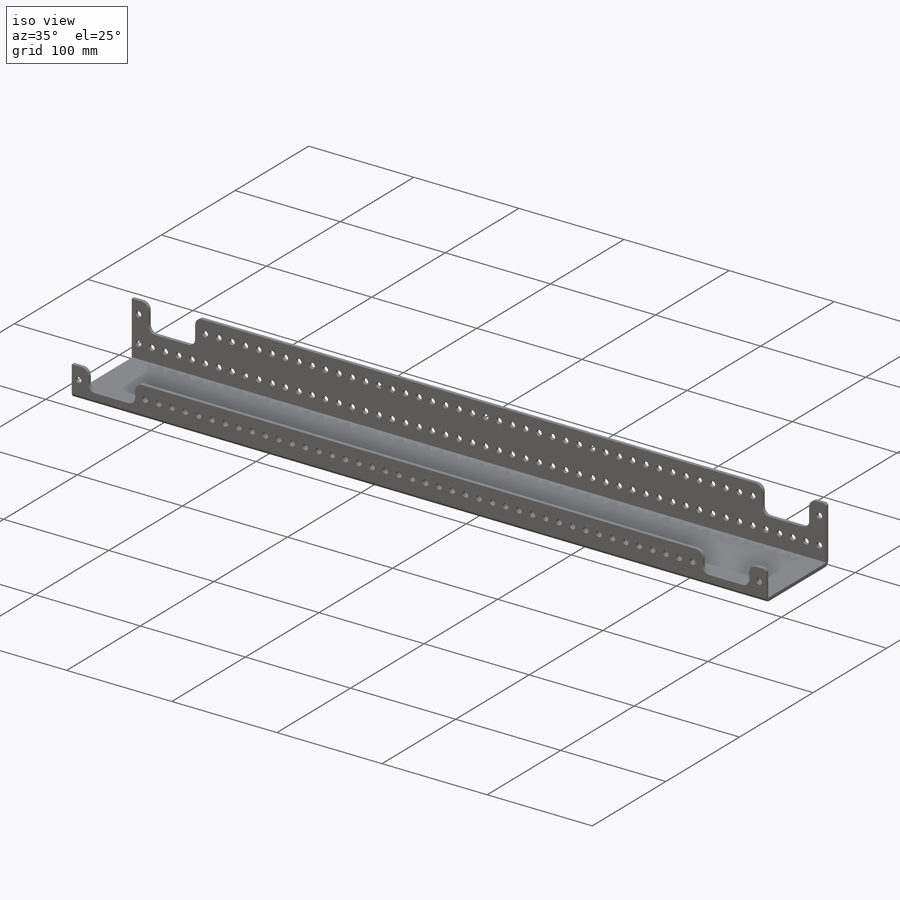
[diagram: iso view]
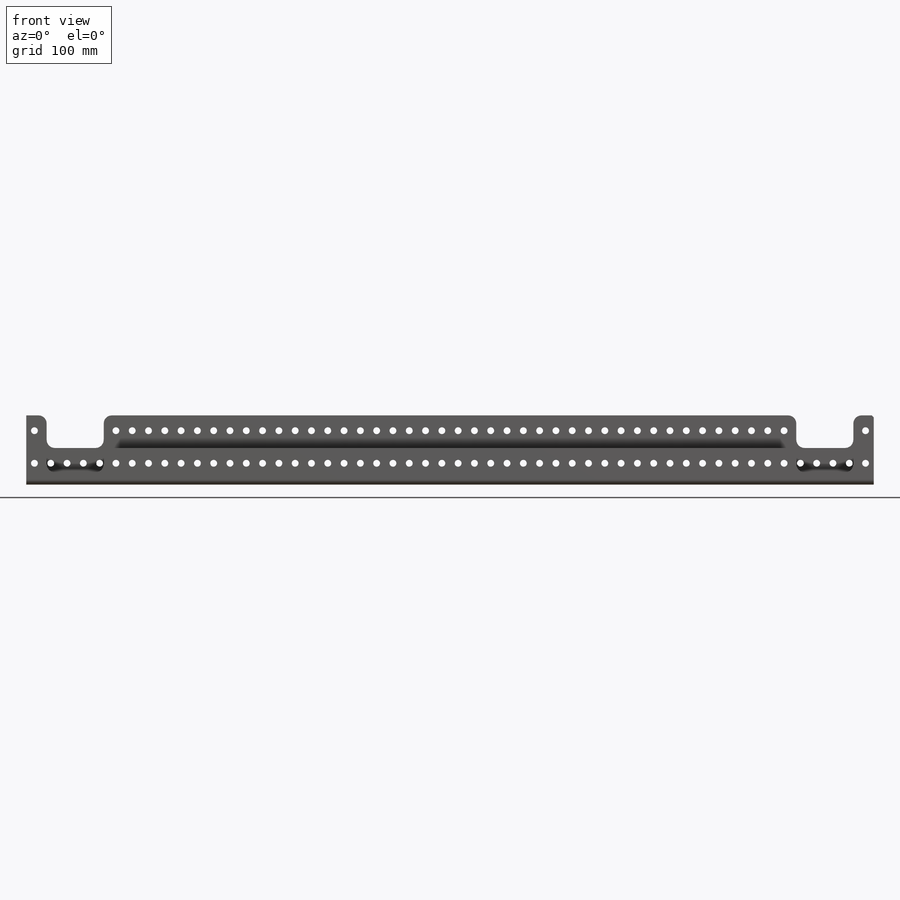
[diagram: front view]
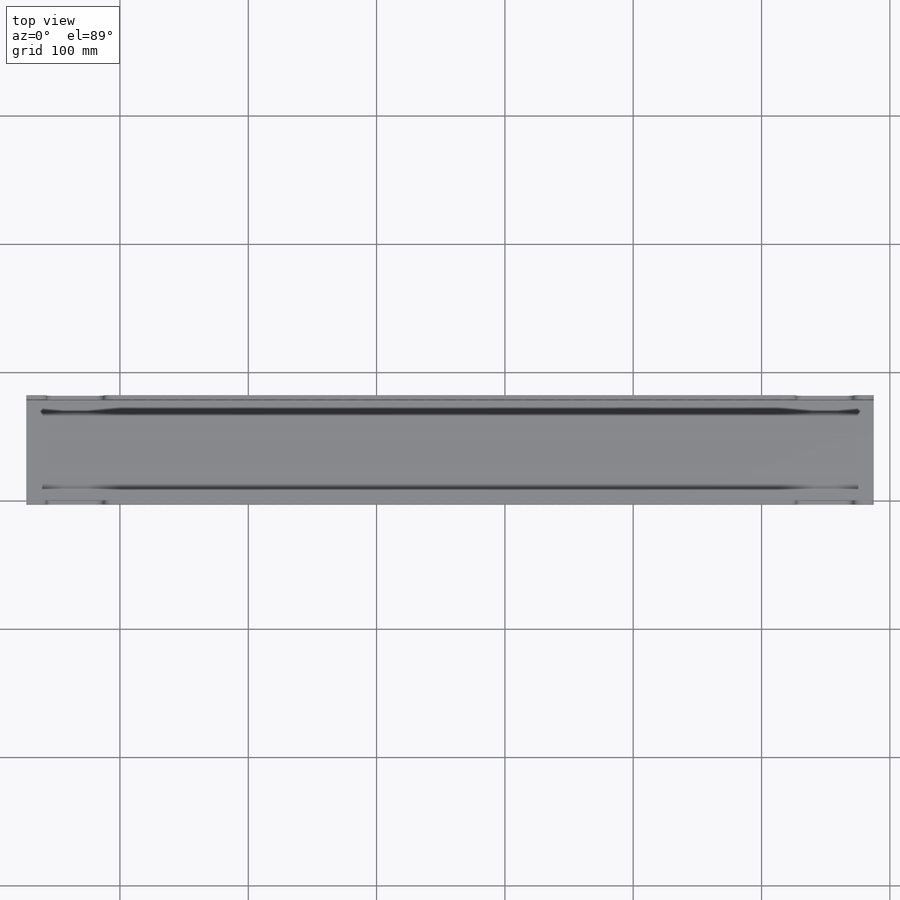
[diagram: top view]
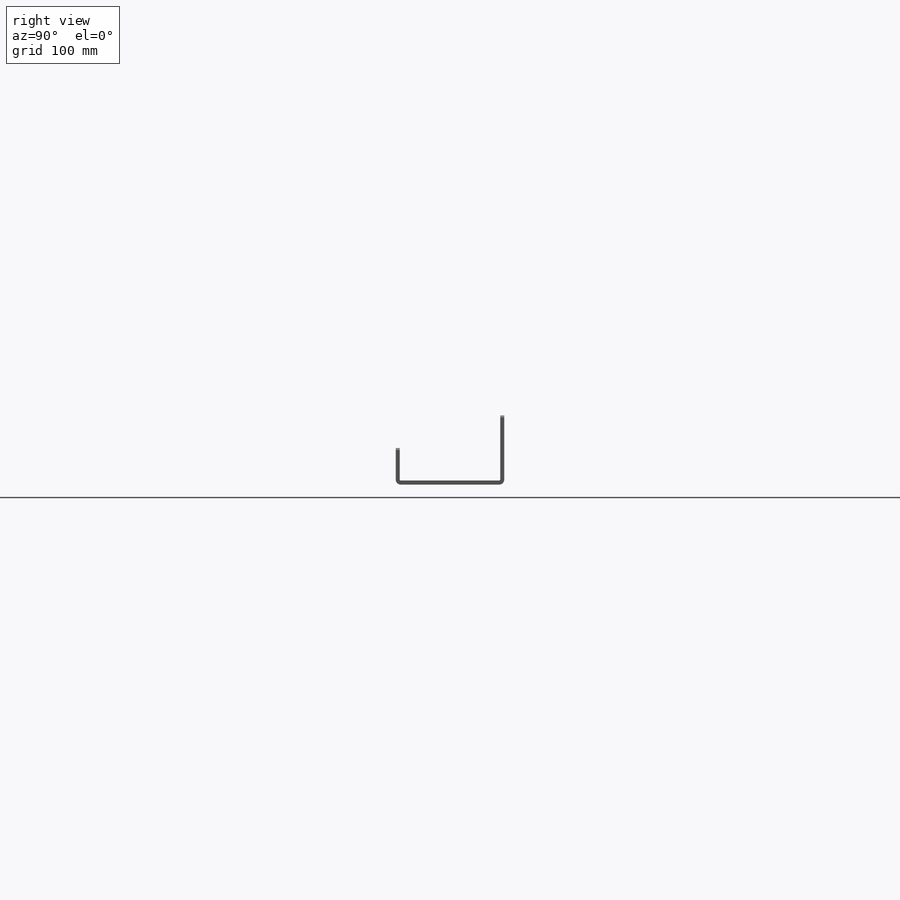
[diagram: right view]
SOLIDWORKS PART (.sldprt)
format: sldprt  version: not decoded by parser v0  size: 785,408 bytes
history: native  units: mm
features: sketch x9, cut_extrude x5, pattern_linear x4, sheet_metal_op x2, chamfer x2, fillet x2, material x1, extrude x1 + 1 further entry (+13 scaffold rows collapsed; 1 parser-record rows omitted)
feature tree (41):
  scaffold x13  (default folders/planes/origin — collapsed)
  material  "5052-H32"
  sketch  "Sketch1"  dims[D1=78.232mm D2=787.4mm]
  extrude  "Boss-Extrude1"  Depth=3.175mm
  sheet_metal_op  "Sheet-Metal1"
  sketch  "Sketch5"  dims[c1.D1=0.762mm c1.D4=90.0deg c1.D5=1.0 c1.D8=1.5875mm c1.D9=1.5875mm c2.D1=0.762mm c2.D2=500.0mm c2.D3=0.0mm c2.D6=10.0mm c2.D7=50.8mm]
  sheet_metal_op  "Edge-Flange2"
  sketch  "Sketch8"  dims[c1.EdgeBend2=0.0 c1.D1=0.762mm c1.D4=90.0deg c1.D5=2.0 c1.D8=1.5875mm c1.D9=1.5875mm c2.D1=0.762mm c2.D2=500.0mm c2.D3=0.0mm c2.D6=10.0mm c2.D7=25.4mm]
  sketch  "Sketch9"  dims[D3=5.334mm D1=6.35mm D2=12.7mm]
  cut_extrude  "Cut-Extrude1"  [1 undecoded]
  chamfer  "Chamfer1"  Distance=1.5875mm Angle=45deg
  pattern_linear  "LPattern1"  Count1=62 Count2=1 Spacing1=12.7mm Spacing2=2.54mm
  sketch  "Sketch10"  dims[D1=127.0mm]
  cut_extrude  "Cut-Extrude2"  [1 undecoded]
  chamfer  "Chamfer2"  Distance=1.5875mm Angle=45deg
  sketch  "Sketch14"  dims[D1=25.4mm]
  cut_extrude  "Cut-Extrude6"  Depth=5.08mm
  pattern_linear  "LPattern4"  Count1=62 Count2=1 Spacing1=12.7mm Spacing2=2.54mm
  sketch  "Sketch15"  dims[c1.D1=~45.269674mm c1.D2=3.175mm c1.D3=~2.355326mm c2.D1=3.175mm c2.D3=25.4mm]
  cut_extrude  "Cut-Extrude7"  [1 undecoded]
  pattern_linear  "LPattern5"  Count1=2 Count2=1 Spacing1=584.2mm Spacing2=50mm
  sketch  "Sketch16"  dims[D1=19.05mm D2=0.0mm D3=0.0mm]
  cut_extrude  "Cut-Extrude8"  [1 undecoded]
  pattern_linear  "LPattern6"  Count1=2 Count2=1 Spacing1=584.2mm Spacing2=50mm
  fillet  "Fillet1"  Radius=6.35mm
  "Flat-Pattern1"
  sketch  "Bend-Lines1"
  fillet  "Flatten-<EdgeBend2>1"  [1 undecoded]
  parser-record x1  (decoder bookkeeping rows leaked as tree rows — omitted from the tree; the rows remain in map.json)
decode coverage: 17 of 25 modeling features carry decoded parameters; 1 rows unclassified (native names shown)
note: ~ marks probable driven/reference dimensions
note: 5 parameter values undecoded
summary: no parameter record found for 5 features
note: suppression state not decoded; provenance and decode notes live in map.json
